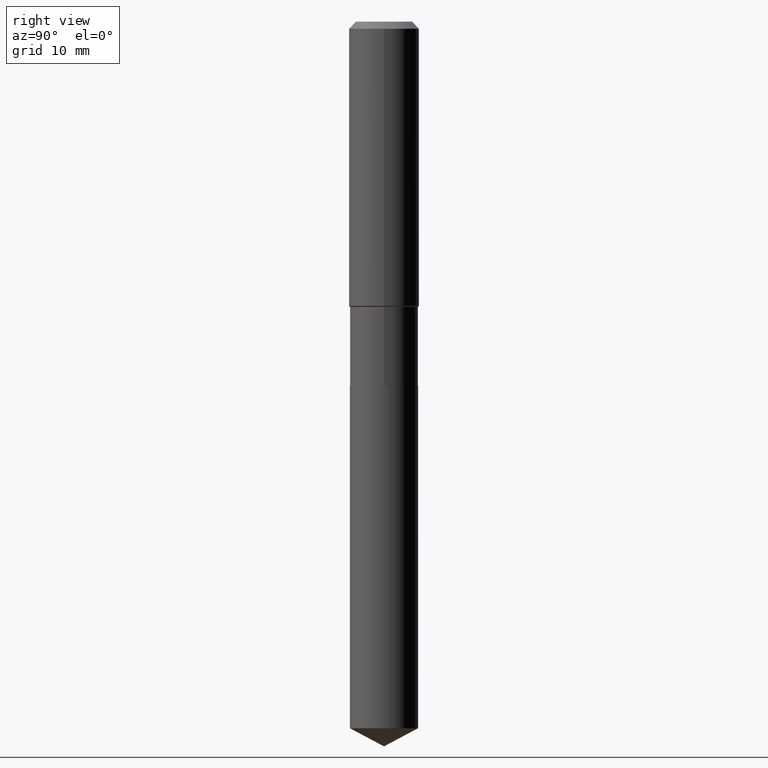
[diagram: clean part render]
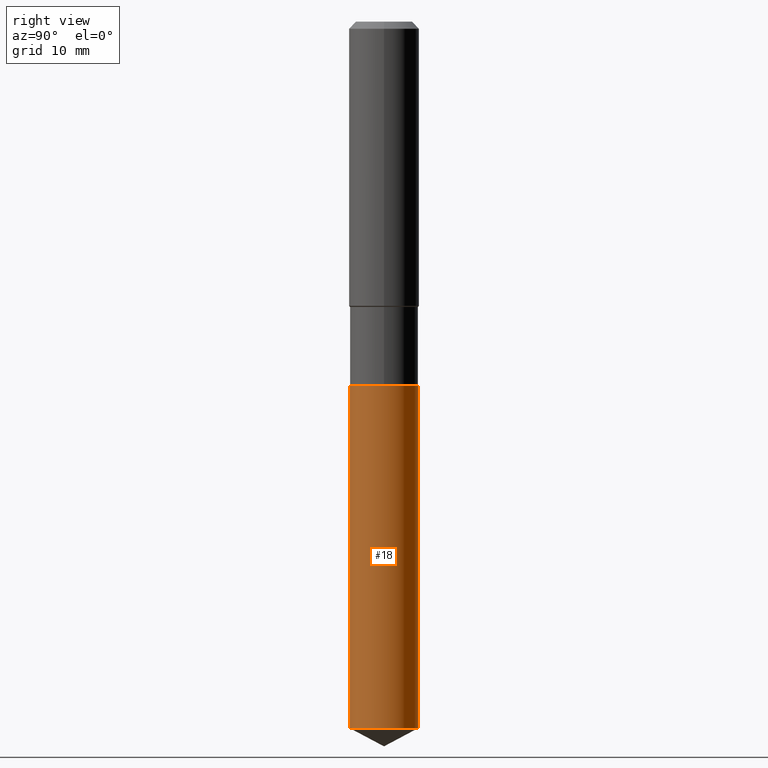
[diagram: same view with one face highlighted and labeled with its STEP entity id]
A machine part, right view. The second image highlights one B-rep face of the part: STEP entity #18.
In plain terms, the highlighted cylindrical surface (edge-blend (fillet) strip) has radius 4.8501 mm, axis along (-0, 0, 1).
Its self-contained STEP definition (entity closure, byte-faithful):
#6 = CARTESIAN_POINT ( 'NONE',  ( -1.333396723304142848E-15, -0.1909500000000071140, -2.035399999999999210 ) ) ;
#16 = DIRECTION ( 'NONE',  ( -6.982962677686265922E-15, -1.000000000000000000, 2.861322852751257324E-15 ) ) ;
#18 = ADVANCED_FACE ( 'NONE', ( #403 ), #65, .T. ) ;
#27 = AXIS2_PLACEMENT_3D ( 'NONE', #178, #169, #289 ) ;
#52 = CARTESIAN_POINT ( 'NONE',  ( 9.668415666790709812E-29, -1.380369680359147587E-14, -3.953570084024240927 ) ) ;
#65 = CYLINDRICAL_SURFACE ( 'NONE', #27, 0.1909500000000000086 ) ;
#89 = LINE ( 'NONE', #447, #448 ) ;
#90 = ORIENTED_EDGE ( 'NONE', *, *, #375, .F. ) ;
#91 = DIRECTION ( 'NONE',  ( -2.445512260748093930E-29, 3.491419109435710839E-15, 1.000000000000000000 ) ) ;
#105 = EDGE_CURVE ( 'NONE', #193, #120, #190, .T. ) ;
#120 = VERTEX_POINT ( 'NONE', #338 ) ;
#147 = CIRCLE ( 'NONE', #347, 0.1909500000000000086 ) ;
#169 = DIRECTION ( 'NONE',  ( -2.445512260748093650E-29, 3.491419109435710839E-15, 1.000000000000000000 ) ) ;
#178 = CARTESIAN_POINT ( 'NONE',  ( 4.977507208109226498E-29, -7.106561117081337562E-15, -2.035399999999999654 ) ) ;
#183 = CARTESIAN_POINT ( 'NONE',  ( 1.356781353934007804E-15, 0.1909499999999862418, -3.953570084024241815 ) ) ;
#184 = EDGE_LOOP ( 'NONE', ( #229, #213, #90, #343 ) ) ;
#190 = LINE ( 'NONE', #6, #339 ) ;
#193 = VERTEX_POINT ( 'NONE', #271 ) ;
#202 = DIRECTION ( 'NONE',  ( -2.445512260748093650E-29, 3.491419109435710839E-15, 1.000000000000000000 ) ) ;
#213 = ORIENTED_EDGE ( 'NONE', *, *, #444, .T. ) ;
#222 = DIRECTION ( 'NONE',  ( -2.445512260748093930E-29, 3.491419109435710839E-15, 1.000000000000000000 ) ) ;
#229 = ORIENTED_EDGE ( 'NONE', *, *, #341, .T. ) ;
#241 = CIRCLE ( 'NONE', #437, 0.1909500000000000086 ) ;
#271 = CARTESIAN_POINT ( 'NONE',  ( -1.333396723304096305E-15, -0.1909500000000138031, -3.953570084024240483 ) ) ;
#289 = DIRECTION ( 'NONE',  ( -6.982962677686265922E-15, -1.000000000000000000, 2.861322852751257324E-15 ) ) ;
#312 = CARTESIAN_POINT ( 'NONE',  ( 1.356781353934008199E-15, 0.1909499999999929032, -2.035400000000000542 ) ) ;
#338 = CARTESIAN_POINT ( 'NONE',  ( -1.333396723304142848E-15, -0.1909500000000071140, -2.035399999999999210 ) ) ;
#339 = VECTOR ( 'NONE', #222, 39.37007874015748143 ) ;
#341 = EDGE_CURVE ( 'NONE', #193, #409, #241, .T. ) ;
#343 = ORIENTED_EDGE ( 'NONE', *, *, #105, .F. ) ;
#347 = AXIS2_PLACEMENT_3D ( 'NONE', #423, #202, #392 ) ;
#351 = DIRECTION ( 'NONE',  ( -2.445512260748093650E-29, 3.491419109435710839E-15, 1.000000000000000000 ) ) ;
#353 = VERTEX_POINT ( 'NONE', #312 ) ;
#375 = EDGE_CURVE ( 'NONE', #120, #353, #147, .T. ) ;
#392 = DIRECTION ( 'NONE',  ( -6.982962677686265922E-15, -1.000000000000000000, 2.861322852751257324E-15 ) ) ;
#403 = FACE_OUTER_BOUND ( 'NONE', #184, .T. ) ;
#409 = VERTEX_POINT ( 'NONE', #183 ) ;
#423 = CARTESIAN_POINT ( 'NONE',  ( 4.977507208109226498E-29, -7.106561117081337562E-15, -2.035399999999999654 ) ) ;
#437 = AXIS2_PLACEMENT_3D ( 'NONE', #52, #351, #16 ) ;
#444 = EDGE_CURVE ( 'NONE', #409, #353, #89, .T. ) ;
#447 = CARTESIAN_POINT ( 'NONE',  ( 1.356781353933960867E-15, 0.1909499999999929032, -2.035400000000000542 ) ) ;
#448 = VECTOR ( 'NONE', #91, 39.37007874015748143 ) ;